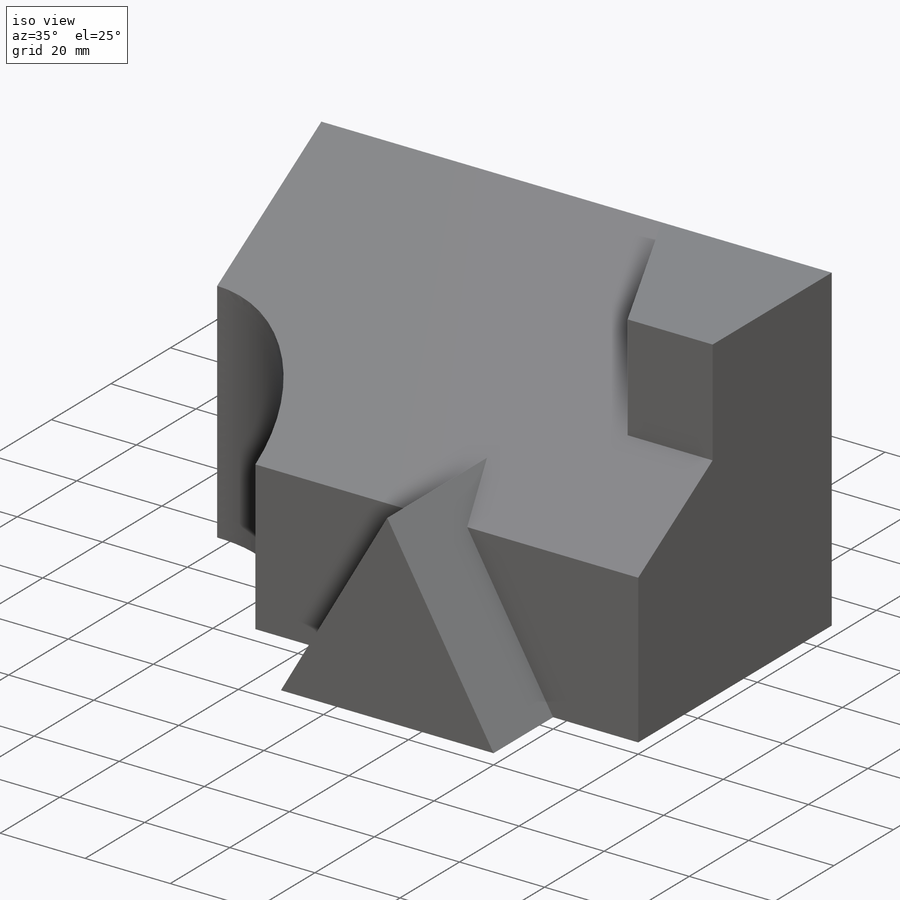
[diagram: iso view]
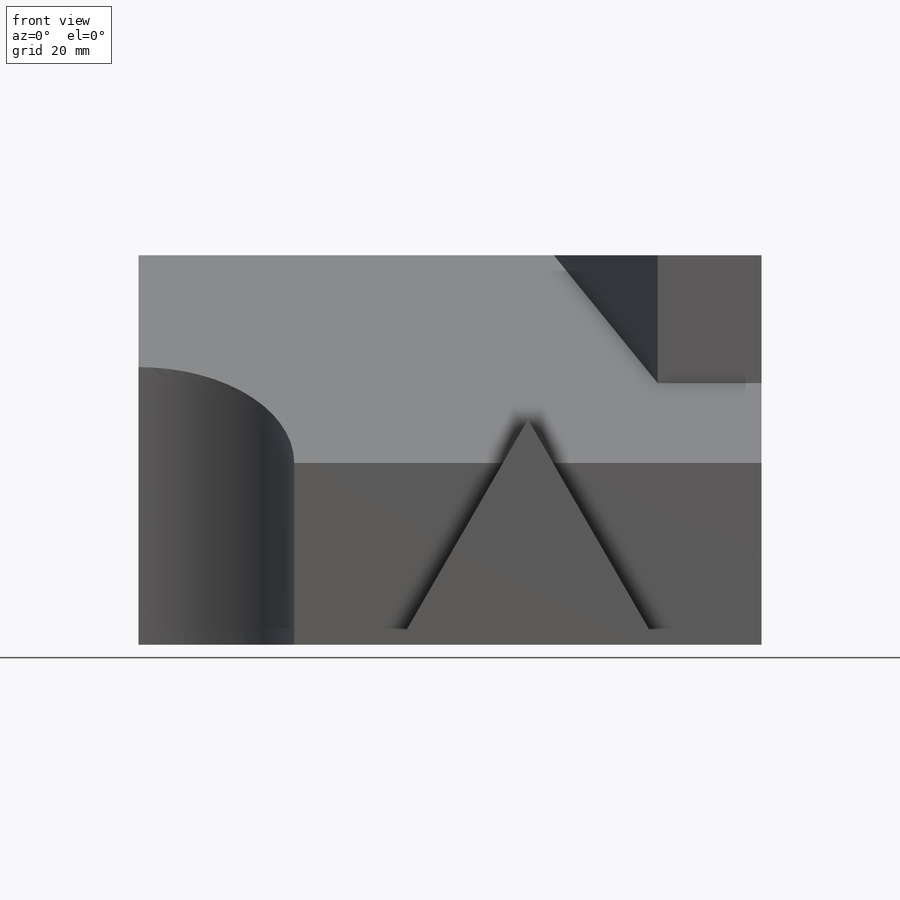
[diagram: front view]
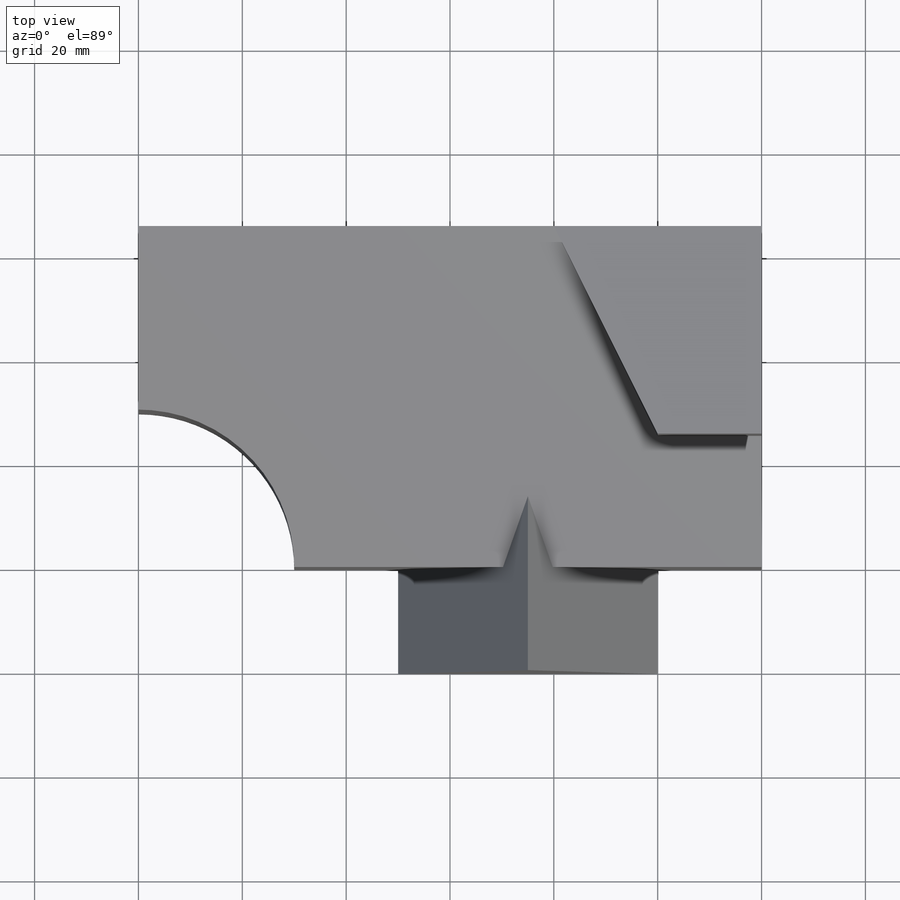
[diagram: top view]
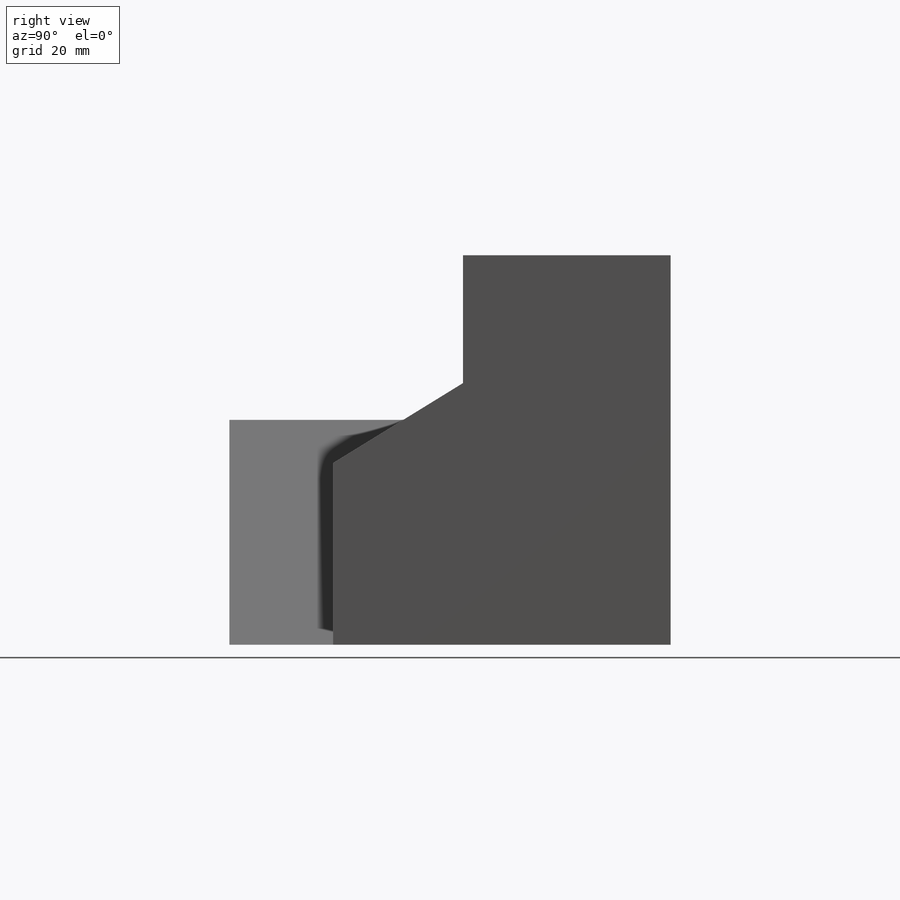
[diagram: right view]
SOLIDWORKS PART (.sldprt)
format: sldprt  version: not decoded by parser v0  size: 302,080 bytes
history: native  units: mm
features: sketch x3, extrude x3, material x1, chamfer x1 (+14 scaffold rows collapsed)
feature tree (22):
  scaffold x14  (default folders/planes/origin — collapsed)
  material  "Material <not specified>"
  sketch  "Sketch1"  dims[D3=~31.341167mm D1=120.0mm D2=65.0mm]
  extrude  "Extrude1"  Depth=75mm
  chamfer  "Chamfer1"  Distance=40mm
  sketch  "Sketch2"  dims[D1=40.0mm D2=40.0mm D3=20.0mm]
  extrude  "Extrude2"  Depth=75mm
  sketch  "Sketch3"  dims[c1.D1=60.0deg c2.D1=25.0mm]
  extrude  "Extrude3"  Depth=20mm
decode coverage: 7 of 7 modeling features carry decoded parameters
note: ~ marks probable driven/reference dimensions
note: suppression state not decoded; provenance and decode notes live in map.json
